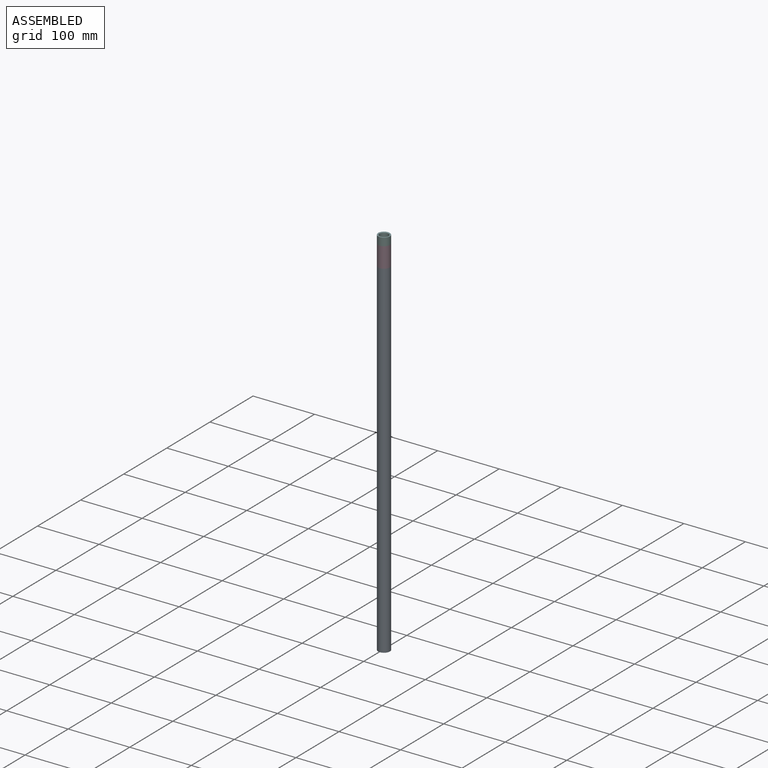
[diagram: assembled view]
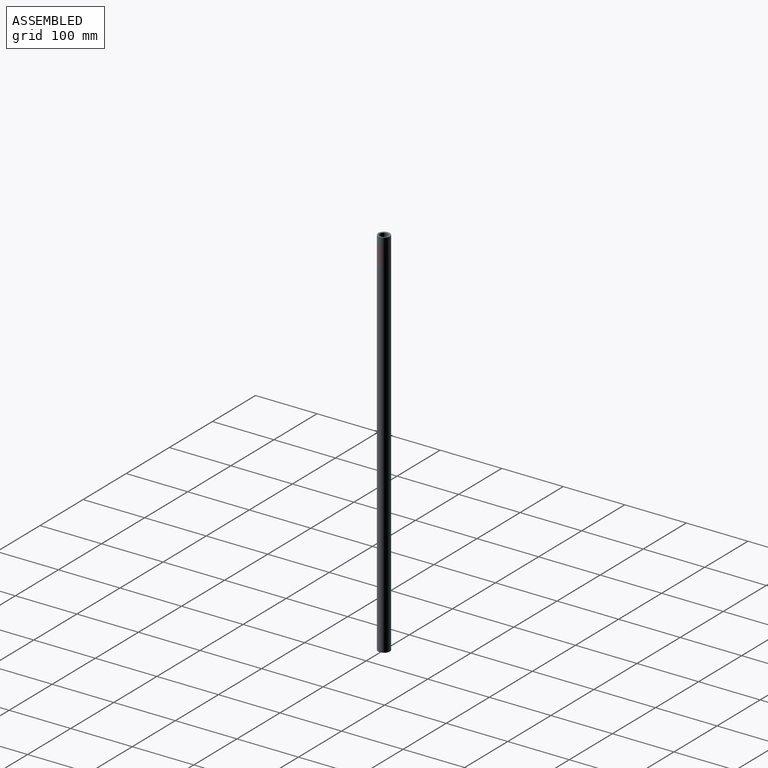
[diagram: assembled view, second angle]
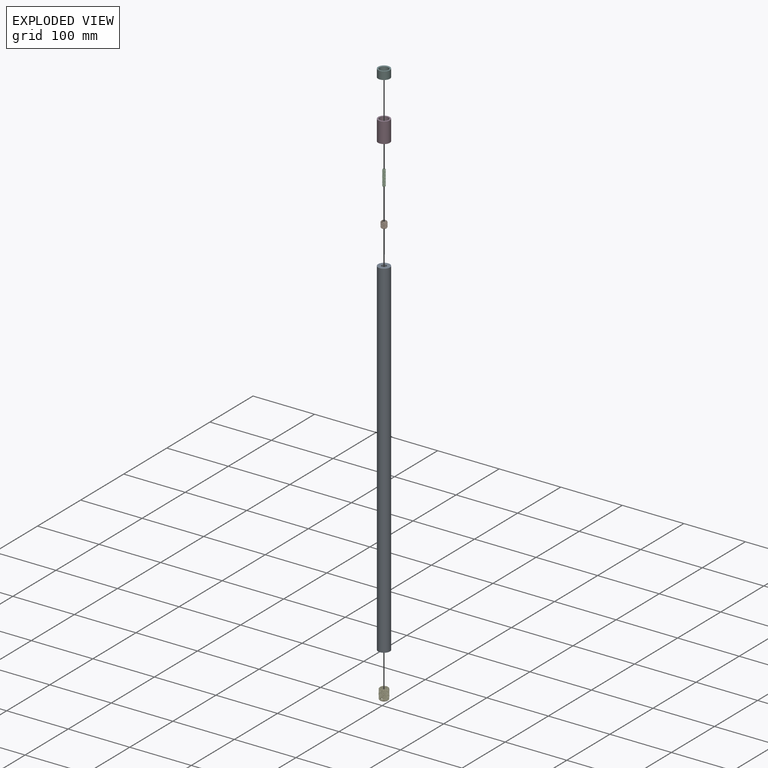
[diagram: exploded view]
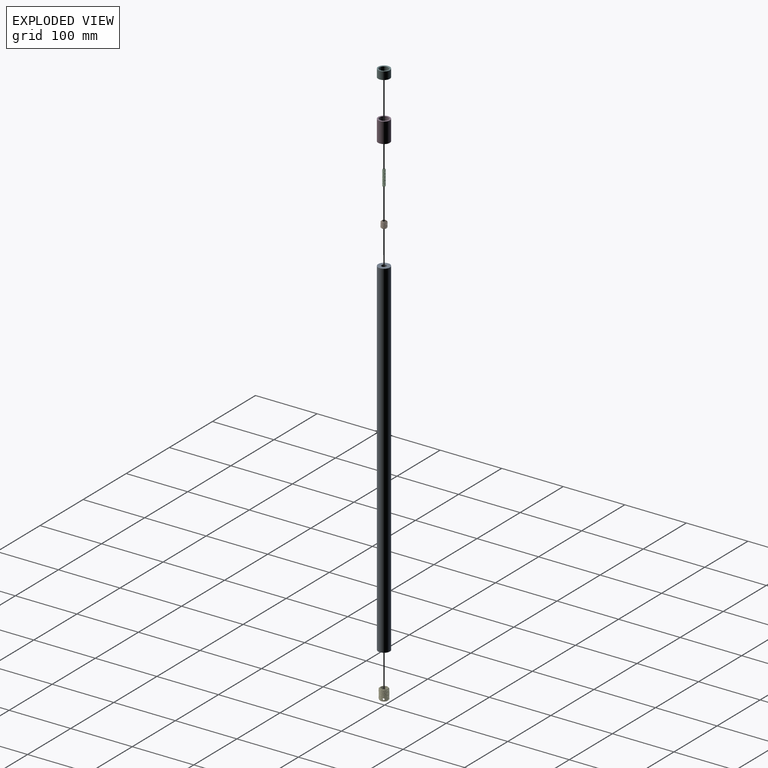
[diagram: exploded view, second angle]
ASSEMBLY  parts=6 mates=5
PART A: 7 faces, bbox 19.1x19.1x563.9 mm
  f0: plane 19.05x19.05mm, normal (0,0,1), area 235.4mm2, adj f2,f5
  f1: plane 19.05x19.05mm, normal (0,0,-1), area 142mm2, adj f2,f3
  f2: cylinder r=9.53mm len=563.88mm, axis (0,0,1), area 33746.7mm2, adj f0,f1
  f3: cylinder r=6.75mm len=17.46mm, axis (0,0,-1), area 740.3mm2, adj f1,f4
  f4: plane 13.49x13.49mm, normal (0,0,-1), area 143mm2, adj f3
  f5: cylinder r=3.98mm len=17.48mm, axis (0,0,1), area 436.5mm2, adj f0,f6
  f6: plane 7.95x7.95mm, normal (0,0,1), area 49.6mm2, adj f5
PART B: 31 faces, bbox 9.7x11x9.7 mm
  f0: cylinder r=4.76mm len=2.55mm, axis (0,1,0), area 0.2mm2, adj f6,f9,f25
  f1: plane 1.94x1.8mm, normal (-1,0,0), area 2.6mm2, adj f2,f9,f15,f16,f24,f25,f26
  f2: plane 2.02x1.64mm, normal (0,1,0), area 3mm2, adj f1,f3,f16,f24
  f3: plane 2.01x1.79mm, normal (1,0,0), area 2.6mm2, adj f2,f10,f14,f16,f23,f24,f27
  f4: plane 2.3x1.8mm, normal (1,0,0), area 3mm2, adj f5,f10,f13,f14,f16,f23,f24,f25
  f5: plane 1.71x1.65mm, normal (0,1,0), area 2.5mm2, adj f4,f6,f16,f25
  f6: plane 2.29x1.8mm, normal (-1,0,0), area 3mm2, adj f0,f5,f9,f15,f16,f25,f28,f29
  f7: cone r=4.76mm half-angle=45deg, axis (0,1,0), area 22.8mm2, adj f8,f17,f24,f25,f26
  f8: cone r=4.76mm half-angle=45deg, axis (0,1,0), area 1.2mm2, adj f7,f13,f25
  f9: cone r=3.57mm half-angle=45deg, axis (0,-1,0), area 13mm2, adj f0,f1,f6,f15,f25,f28,f29,f30
  f10: cone r=3.57mm half-angle=45deg, axis (0,-1,0), area 8.4mm2, adj f3,f4,f14,f23
  f11: cone r=2.39mm half-angle=45deg, axis (0,-1,0), area 5mm2, adj f17,f19,f20,f21,f22
  f12: cone r=1.9mm half-angle=45deg, axis (0,1,0), area 5mm2, adj f18,f19,f20,f21,f22
  f13: cylinder r=4.76mm len=9.53mm, axis (0,1,0), area 40.9mm2, adj f4,f8,f24,f25
  f14: plane 6.96x2.76mm, normal (0,1,0), area 8.1mm2, adj f3,f4,f10,f16
  f15: plane 6.96x2.76mm, normal (0,1,0), area 8.1mm2, adj f1,f6,f9,f16
  f16: cylinder r=2.55mm len=5.11mm, axis (0,1,0), area 26.7mm2, adj f1,f2,f3,f4,f5,f6,f14,f15
  f17: plane 7.14x7.14mm, normal (0,-1,0), area 22.1mm2, adj f7,f11
  f18: plane 5.11x5.11mm, normal (0,1,0), area 2.5mm2, adj f12,f16
  f19: cylinder r=1.9mm len=7.29mm, axis (0,1,0), area 10.9mm2, adj f11,f12,f20,f22
  f20: bspline ~8.61x4.65mm, area 64.7mm2, adj f11,f12,f19,f21
  f21: cylinder r=2.33mm len=8.15mm, axis (0,1,0), area 29.8mm2, adj f11,f12,f20,f22
  f22: bspline ~8.51x4.65mm, area 67.1mm2, adj f11,f12,f19,f21
  f23: bspline ~8.84x4.42mm, area 5mm2, adj f3,f4,f10,f27
  f24: bspline ~10.37x9.7mm, area 172.3mm2, adj f1,f2,f3,f4,f7,f13,f26,f27
  f25: bspline ~9.77x9.7mm, area 171.3mm2, adj f0,f1,f4,f5,f6,f7,f8,f9
  f26: cylinder r=3.73mm len=8.91mm, axis (0,1,0), area 30.1mm2, adj f1,f7,f24,f25
  f27: cylinder r=3.73mm len=7.28mm, axis (0,1,0), area 2mm2, adj f3,f4,f23,f24
  f28: bspline ~2.79x1.88mm, area 0.2mm2, adj f6,f9,f29
  f29: cylinder r=3.73mm len=4.23mm, axis (0,1,0), area 0.8mm2, adj f6,f9,f28,f30
  f30: bspline ~6.28x4.72mm, area 3.3mm2, adj f6,f9,f29
PART C: 9 faces, bbox 26x4.9x4.9 mm
  f0: cone r=2.41mm half-angle=45deg, axis (1,0,0), area 5.8mm2, adj f1,f4,f6,f7,f8
  f1: cone r=2.41mm half-angle=45deg, axis (1,0,0), area 0.3mm2, adj f0,f3,f6
  f2: cone r=1.82mm half-angle=45deg, axis (-1,0,0), area 6.1mm2, adj f3,f5,f6,f7,f8
  f3: cylinder r=2.41mm len=24.21mm, axis (1,0,0), area 45.6mm2, adj f1,f2,f6,f8
  f4: plane 3.64x3.64mm, normal (-1,0,0), area 10.4mm2, adj f0
  f5: plane 3.64x3.64mm, normal (1,0,0), area 10.4mm2, adj f2
  f6: bspline ~25.72x4.91mm, area 250.9mm2, adj f0,f1,f2,f3,f7
  f7: cylinder r=1.9mm len=25.24mm, axis (1,0,0), area 37.8mm2, adj f0,f2,f6,f8
  f8: bspline ~25.72x4.91mm, area 251.7mm2, adj f0,f2,f3,f7
PART D: 4 faces, bbox 19.1x19.1x33 mm
  f0: cylinder r=9.53mm len=33.02mm, axis (0,0,1), area 1976.2mm2, adj f1,f2
  f1: plane 19.05x19.05mm, normal (0,0,1), area 123.3mm2, adj f0,f3
  f2: plane 19.05x19.05mm, normal (0,0,-1), area 158.3mm2, adj f0,f3
  f3: cone r=7.18mm half-angle=1.4deg, axis (0,0,1), area 1403.6mm2, adj f1,f2
PART E: 59 faces, bbox 14.5x18.5x14.5 mm
  f0: cylinder r=7.15mm len=9.12mm, axis (0,1,0), area 2.3mm2, adj f33,f44,f56,f57
  f1: cylinder r=7.15mm len=10.68mm, axis (0,1,0), area 2.4mm2, adj f34,f45,f57,f58
  f2: cylinder r=7.15mm len=9.5mm, axis (0,1,0), area 2.5mm2, adj f35,f46,f56,f58
  f3: cylinder r=7.15mm len=11.26mm, axis (0,1,0), area 2.5mm2, adj f31,f42,f57,f58
  f4: cylinder r=7.15mm len=14.3mm, axis (0,1,0), area 66mm2, adj f30,f42,f50,f57
  f5: cylinder r=7.15mm len=9.35mm, axis (0,1,0), area 2.4mm2, adj f32,f43,f56,f58
  f6: cylinder r=3.73mm len=3.72mm, axis (0,1,0), area 0.9mm2, adj f14,f27,f56,f57
  f7: cylinder r=3.73mm len=4.5mm, axis (0,1,0), area 0.9mm2, adj f15,f28,f57,f58
  f8: cylinder r=3.73mm len=4.3mm, axis (0,1,0), area 1.1mm2, adj f16,f29,f56,f58
  f9: cylinder r=3.73mm len=5.21mm, axis (0,1,0), area 1.1mm2, adj f12,f25,f57,f58
  f10: cylinder r=3.73mm len=11.78mm, axis (0,1,0), area 33.9mm2, adj f12,f24,f52,f57
  f11: cylinder r=3.73mm len=3.97mm, axis (0,1,0), area 0.9mm2, adj f13,f26,f56,f58
  f12: bspline ~13.25x9.18mm, area 210mm2, adj f9,f10,f18,f52,f57,f58
  f13: bspline ~6.86x4.21mm, area 6.1mm2, adj f11,f18,f56,f58
  f14: bspline ~6.08x4.06mm, area 5.5mm2, adj f6,f19,f56,f57
  f15: bspline ~6.49x2.01mm, area 5.5mm2, adj f7,f20,f57,f58
  f16: bspline ~6.03x4.05mm, area 5.9mm2, adj f8,f21,f56,f58
  f17: bspline ~9.18x9.18mm, area 22.1mm2, adj f22,f23,f49,f53,f56,f57
  f18: cylinder r=4.59mm len=12.99mm, axis (0,-1,0), area 80mm2, adj f12,f13,f24,f52,f56,f58
  f19: cylinder r=4.59mm len=5.5mm, axis (0,-1,0), area 2.8mm2, adj f14,f24,f56,f57
  f20: cylinder r=4.59mm len=6.02mm, axis (0,-1,0), area 2.6mm2, adj f15,f25,f57,f58
  f21: cylinder r=4.59mm len=5.16mm, axis (0,-1,0), area 2.6mm2, adj f16,f26,f56,f58
  f22: cylinder r=4.59mm len=5.69mm, axis (0,-1,0), area 2.7mm2, adj f17,f27,f56,f57
  f23: cylinder r=4.59mm len=9.18mm, axis (0,-1,0), area 12.6mm2, adj f17,f28,f29,f53,f57,f58
  f24: bspline ~13.65x9.18mm, area 207.3mm2, adj f10,f18,f19,f52,f56,f57
  f25: bspline ~6.11x1.88mm, area 5.9mm2, adj f9,f20,f57,f58
  f26: bspline ~5.1x3.31mm, area 5.5mm2, adj f11,f21,f56,f58
  f27: bspline ~6.18x3.92mm, area 5.5mm2, adj f6,f22,f56,f57
  f28: bspline ~7.17x2.7mm, area 6mm2, adj f7,f23,f57,f58
  f29: bspline ~9.18x9.18mm, area 20.2mm2, adj f8,f23,f49,f53,f56,f58
  f30: bspline ~14.47x14.47mm, area 392.9mm2, adj f4,f36,f37,f50,f56,f57
  f31: bspline ~12.66x4.41mm, area 13.2mm2, adj f3,f38,f57,f58
  f32: bspline ~10.71x6.97mm, area 12.8mm2, adj f5,f39,f56,f58
  f33: bspline ~10.61x6.95mm, area 13mm2, adj f0,f40,f56,f57
  f34: bspline ~11.1x3.53mm, area 13.7mm2, adj f1,f41,f57,f58
  f35: bspline ~14.47x14.47mm, area 40.3mm2, adj f2,f41,f48,f51,f56,f58
  f36: cylinder r=6.12mm len=13.09mm, axis (0,-1,0), area 44.7mm2, adj f30,f42,f43,f50,f56,f58
  f37: cylinder r=6.12mm len=7.76mm, axis (0,-1,0), area 2mm2, adj f30,f44,f56,f57
  f38: cylinder r=6.12mm len=8.74mm, axis (0,-1,0), area 1.9mm2, adj f31,f45,f57,f58
  f39: cylinder r=6.12mm len=7.52mm, axis (0,-1,0), area 1.9mm2, adj f32,f46,f56,f58
  f40: cylinder r=6.12mm len=7.95mm, axis (0,-1,0), area 2mm2, adj f33,f47,f56,f57
  f41: cylinder r=6.12mm len=12.24mm, axis (0,-1,0), area 9.3mm2, adj f34,f35,f47,f51,f57,f58
  f42: bspline ~14.47x14.47mm, area 386.8mm2, adj f3,f4,f36,f50,f57,f58
  f43: bspline ~10x5.94mm, area 13.8mm2, adj f5,f36,f56,f58
  f44: bspline ~9.1x5.86mm, area 13mm2, adj f0,f37,f56,f57
  f45: bspline ~12.27x4.03mm, area 12.8mm2, adj f1,f38,f57,f58
  f46: bspline ~9.35x6.23mm, area 13.2mm2, adj f2,f39,f56,f58
  f47: bspline ~14.29x14.28mm, area 46.4mm2, adj f40,f41,f48,f51,f56,f57
  f48: cylinder r=7.15mm len=14.26mm, axis (0,1,0), area 3.7mm2, adj f35,f47,f51,f56
  f49: cylinder r=3.73mm len=7.4mm, axis (0,1,0), area 1.8mm2, adj f17,f29,f53,f56
  f50: cone r=5.96mm half-angle=45deg, axis (0,-1,0), area 38.4mm2, adj f4,f30,f36,f42,f55
  f51: cone r=7.15mm half-angle=45deg, axis (0,1,0), area 38.4mm2, adj f35,f41,f47,f48,f54
  f52: cone r=3.73mm half-angle=45deg, axis (0,1,0), area 28.3mm2, adj f10,f12,f18,f24,f55
  f53: cone r=4.92mm half-angle=45deg, axis (0,-1,0), area 28.3mm2, adj f17,f23,f29,f49,f54
  f54: plane 11.92x11.92mm, normal (0,-1,0), area 35.5mm2, adj f51,f53
  f55: plane 11.92x11.92mm, normal (0,1,0), area 35.5mm2, adj f50,f52
  f56: cylinder r=1.59mm len=3.74mm, axis (0,0,-1), area 25.5mm2, adj f0,f2,f5,f6,f8,f11,f13,f14
  f57: cylinder r=1.59mm len=4.83mm, axis (0.87,0,0.5), area 25.8mm2, adj f0,f1,f3,f4,f6,f7,f9,f10
  f58: cylinder r=1.59mm len=4.72mm, axis (-0.87,0,0.5), area 22.6mm2, adj f1,f2,f3,f5,f7,f8,f9,f11
PART F: 5 faces, bbox 19.1x19.1x12.7 mm
  f0: cylinder r=9.53mm len=19.05mm, axis (0,0,1), area 760.1mm2, adj f1,f3
  f1: plane 19.05x19.05mm, normal (0,0,1), area 99.6mm2, adj f0,f4
  f2: cylinder r=7.18mm len=14.35mm, axis (0,0,1), area 549.7mm2, adj f3,f4
  f3: plane 19.05x19.05mm, normal (0,0,-1), area 123.3mm2, adj f0,f2
  f4: cone r=7.18mm half-angle=45deg, axis (0,0,1), area 33.5mm2, adj f1,f2
PLACE A t=(2.51,0.79,321.22)mm
PLACE B rot(axis=(1,0,0),90deg) t=(2.51,0.79,268.34)mm
PLACE C rot(axis=(0,-1,0),90deg) t=(2.51,0.79,270.72)mm
PLACE D t=(2.51,0.79,321.22)mm
PLACE E rot(axis=(1,0,0),90deg) t=(2.51,0.79,-270.92)mm
PLACE F t=(2.51,0.79,321.22)mm
MATE fastened E.f0 <-> A.f2  axis (0,0,1) through (2.51,0.79,-270.92)mm
MATE fastened F.f0 <-> D.f0  axis (0,0,-1) through (2.51,0.79,308.52)mm
MATE fastened C.f0 <-> B.f0  axis (0,0,-1) through (2.51,0.79,258.02)mm
MATE fastened A.f2 <-> D.f0  axis (0,0,1) through (2.51,0.79,275.5)mm
MATE fastened B.f0 <-> A.f5  axis (0,0,-1) through (2.51,0.79,258.02)mm
